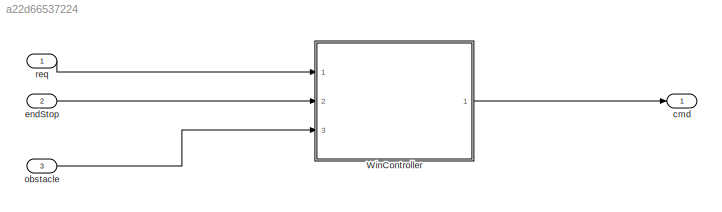
MODEL slx_a22d66537224
KIND model
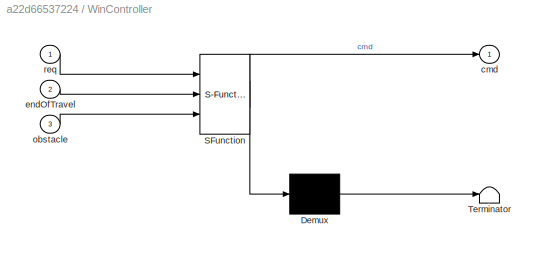
BLOCK [SubSystem] WinController
  ErrorFcn = Stateflow.Translate.translate
  PermitHierarchicalResolution = ExplicitOnly
  Ports = [3, 1]
  RequestExecContextInheritance = off
  SFBlockType = Chart
BLOCK [Demux] WinController/ Demux 
  Outputs = 1
  Ports = [1, 1]
BLOCK [S-Function] WinController/ SFunction 
  EnableBusSupport = on
  FunctionName = sf_sfun
  PortCounts = [3 2]
  Ports = [3, 2]
  Tag = Stateflow S-Function power_window_controller 3
BLOCK [Terminator] WinController/ Terminator 
BLOCK [Outport] WinController/cmd
  IconDisplay = Port number
BLOCK [Inport] WinController/endOfTravel
  IconDisplay = Port number
  Port = 2
BLOCK [Inport] WinController/obstacle
  IconDisplay = Port number
  Port = 3
BLOCK [Inport] WinController/req
  IconDisplay = Port number
BLOCK [Outport] cmd
  IconDisplay = Port number
  OutDataTypeStr = uint8
BLOCK [Inport] endStop
  IconDisplay = Port number
  OutDataTypeStr = boolean
  Port = 2
BLOCK [Inport] obstacle
  IconDisplay = Port number
  OutDataTypeStr = boolean
  Port = 3
BLOCK [Inport] req
  IconDisplay = Port number
  OutDataTypeStr = uint8
LINE WinController:1 -> cmd:1
LINE endStop:1 -> WinController:2
LINE obstacle:1 -> WinController:3
LINE req:1 -> WinController:1
CHART WinController states=16 transitions=39
  STATE_LABEL 'winStates'
  STATE_LABEL 'Stopped\nen: cmd = 0;'
  STATE_LABEL 'unknownPos'
  STATE_LABEL 'fullyClosed'
  STATE_LABEL 'fullyOpen'
  STATE_LABEL 'partiallyOpen'
  STATE_LABEL 'movingUp\nen: cmd = 2;'
  STATE_LABEL 'movingUpBsc'
  STATE_LABEL 'movingUpX'
  STATE_LABEL 'mux_pp'
  STATE_LABEL 'mux_ppo'
  STATE_LABEL '[req ~= 4]'
  STATE_LABEL '[req == 4]'
  STATE_LABEL 'movingDown\nen: cmd = 1;'
  STATE_LABEL 'movingDownBsc'
  STATE_LABEL 'movingDownX'
  STATE_LABEL '[req == 3]'
  STATE_LABEL 'retracting\nen: cmd = 1;'
  STATE_LABEL 'coolDown\nen: cmd = 0;'
  STATE_LABEL '[req == 0]'
  STATE_LABEL '[endOfTravel  == 1]'
  STATE_LABEL '[req == 1]'
  STATE_LABEL '[req==3]'
  STATE_LABEL '[req == 2]'
  STATE_LABEL '[req == 4]'
  STATE_LABEL '[(req == 0)]'
  STATE_LABEL '[req == 0]'
  STATE_LABEL '[req == 1]'
  STATE_LABEL '[req == 2]'
  STATE_LABEL '[req == 4]'
  STATE_LABEL '[req == 3]'
  STATE_LABEL '[endOfTravel]'
  STATE_LABEL '[endOfTravel]'
  STATE_LABEL '[req == 1]'
  STATE_LABEL '[req == 2]'
  STATE_LABEL '[req == 3]'
  STATE_LABEL '[req == 4]'
  STATE_LABEL '[obstacle == 1]'
  STATE_LABEL '[after(10, sec)]'
  STATE_LABEL '[after(10, sec)]'
